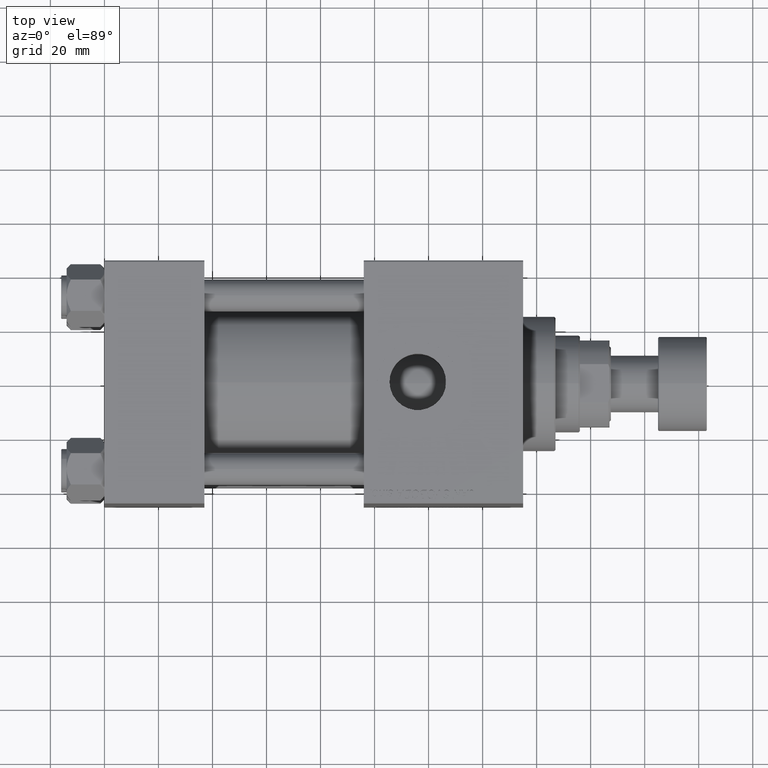
[diagram: clean part render]
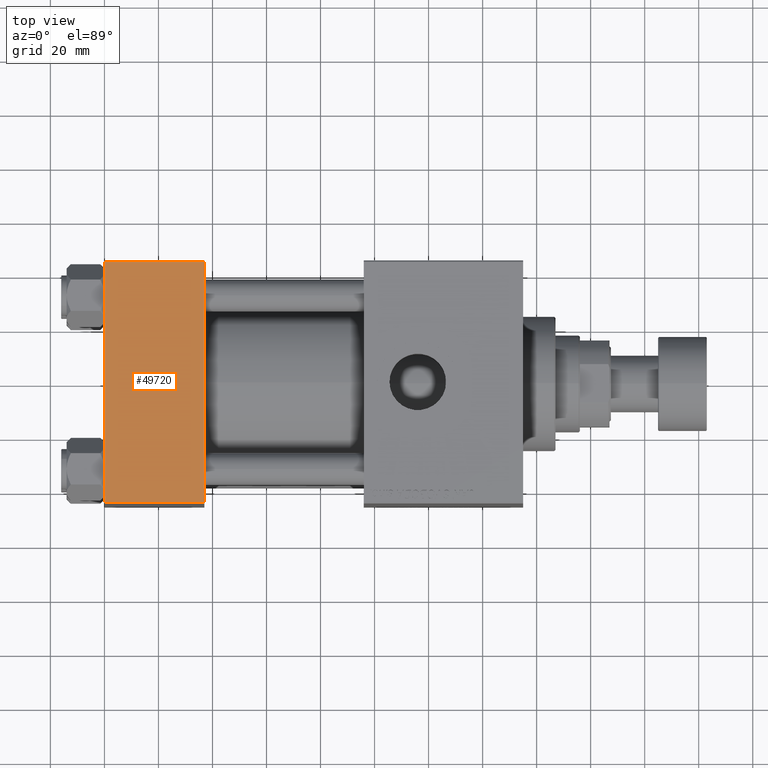
[diagram: same view with one face highlighted and labeled with its STEP entity id]
A machine part, top view. The second image highlights one B-rep face of the part: STEP entity #49720.
In plain terms, the highlighted planar face has unit normal (0, 0, -1).
Its self-contained STEP definition (entity closure, byte-faithful):
#937 = DIRECTION ( 'NONE',  ( 0.000000000000000000, -1.000000000000000000, -2.312964634635742957E-16 ) ) ;
#1874 = CARTESIAN_POINT ( 'NONE',  ( 0.000000000000000000, 44.49999999999997158, 45.00000000000000711 ) ) ;
#3809 = ORIENTED_EDGE ( 'NONE', *, *, #15849, .F. ) ;
#4314 = ORIENTED_EDGE ( 'NONE', *, *, #15021, .T. ) ;
#5042 = LINE ( 'NONE', #24512, #50119 ) ;
#6185 = ORIENTED_EDGE ( 'NONE', *, *, #17892, .T. ) ;
#10496 = EDGE_LOOP ( 'NONE', ( #50682, #6185, #3809, #4314 ) ) ;
#10940 = DIRECTION ( 'NONE',  ( 0.000000000000000000, 1.000000000000000000, 2.312964634635742957E-16 ) ) ;
#10964 = VERTEX_POINT ( 'NONE', #33920 ) ;
#11144 = LINE ( 'NONE', #18332, #29649 ) ;
#12492 = DIRECTION ( 'NONE',  ( 0.000000000000000000, -1.000000000000000000, -2.312964634635742957E-16 ) ) ;
#13952 = AXIS2_PLACEMENT_3D ( 'NONE', #38083, #49380, #10940 ) ;
#15021 = EDGE_CURVE ( 'NONE', #10964, #43496, #44151, .T. ) ;
#15849 = EDGE_CURVE ( 'NONE', #10964, #20067, #5042, .T. ) ;
#17892 = EDGE_CURVE ( 'NONE', #18121, #20067, #11144, .T. ) ;
#18121 = VERTEX_POINT ( 'NONE', #34137 ) ;
#18332 = CARTESIAN_POINT ( 'NONE',  ( 37.00000000000000000, -44.50000000000000000, 44.99999999999998579 ) ) ;
#18816 = CARTESIAN_POINT ( 'NONE',  ( 0.000000000000000000, 44.49999999999997158, 45.00000000000000711 ) ) ;
#20067 = VERTEX_POINT ( 'NONE', #26187 ) ;
#24512 = CARTESIAN_POINT ( 'NONE',  ( 37.00000000000000000, 45.00000000000000000, 45.00000000000000711 ) ) ;
#26187 = CARTESIAN_POINT ( 'NONE',  ( 37.00000000000000000, -44.49999999999997158, 44.99999999999998579 ) ) ;
#29649 = VECTOR ( 'NONE', #42380, 1000.000000000000000 ) ;
#31019 = VECTOR ( 'NONE', #47754, 1000.000000000000000 ) ;
#33920 = CARTESIAN_POINT ( 'NONE',  ( 37.00000000000000000, 44.49999999999997158, 45.00000000000000711 ) ) ;
#34137 = CARTESIAN_POINT ( 'NONE',  ( 0.000000000000000000, -44.49999999999997158, 44.99999999999998579 ) ) ;
#36305 = CARTESIAN_POINT ( 'NONE',  ( 0.000000000000000000, 45.00000000000000000, 45.00000000000000711 ) ) ;
#36307 = EDGE_CURVE ( 'NONE', #43496, #18121, #48088, .T. ) ;
#38083 = CARTESIAN_POINT ( 'NONE',  ( 37.00000000000000000, 45.00000000000000000, 45.00000000000000711 ) ) ;
#41366 = VECTOR ( 'NONE', #12492, 1000.000000000000000 ) ;
#41430 = FACE_OUTER_BOUND ( 'NONE', #10496, .T. ) ;
#41925 = PLANE ( 'NONE',  #13952 ) ;
#42380 = DIRECTION ( 'NONE',  ( 1.000000000000000000, 0.000000000000000000, 0.000000000000000000 ) ) ;
#43496 = VERTEX_POINT ( 'NONE', #18816 ) ;
#44151 = LINE ( 'NONE', #1874, #31019 ) ;
#47754 = DIRECTION ( 'NONE',  ( -1.000000000000000000, 0.000000000000000000, 0.000000000000000000 ) ) ;
#48088 = LINE ( 'NONE', #36305, #41366 ) ;
#49380 = DIRECTION ( 'NONE',  ( 0.000000000000000000, 2.312964634635742957E-16, -1.000000000000000000 ) ) ;
#49720 = ADVANCED_FACE ( 'NONE', ( #41430 ), #41925, .F. ) ;
#50119 = VECTOR ( 'NONE', #937, 1000.000000000000000 ) ;
#50682 = ORIENTED_EDGE ( 'NONE', *, *, #36307, .T. ) ;